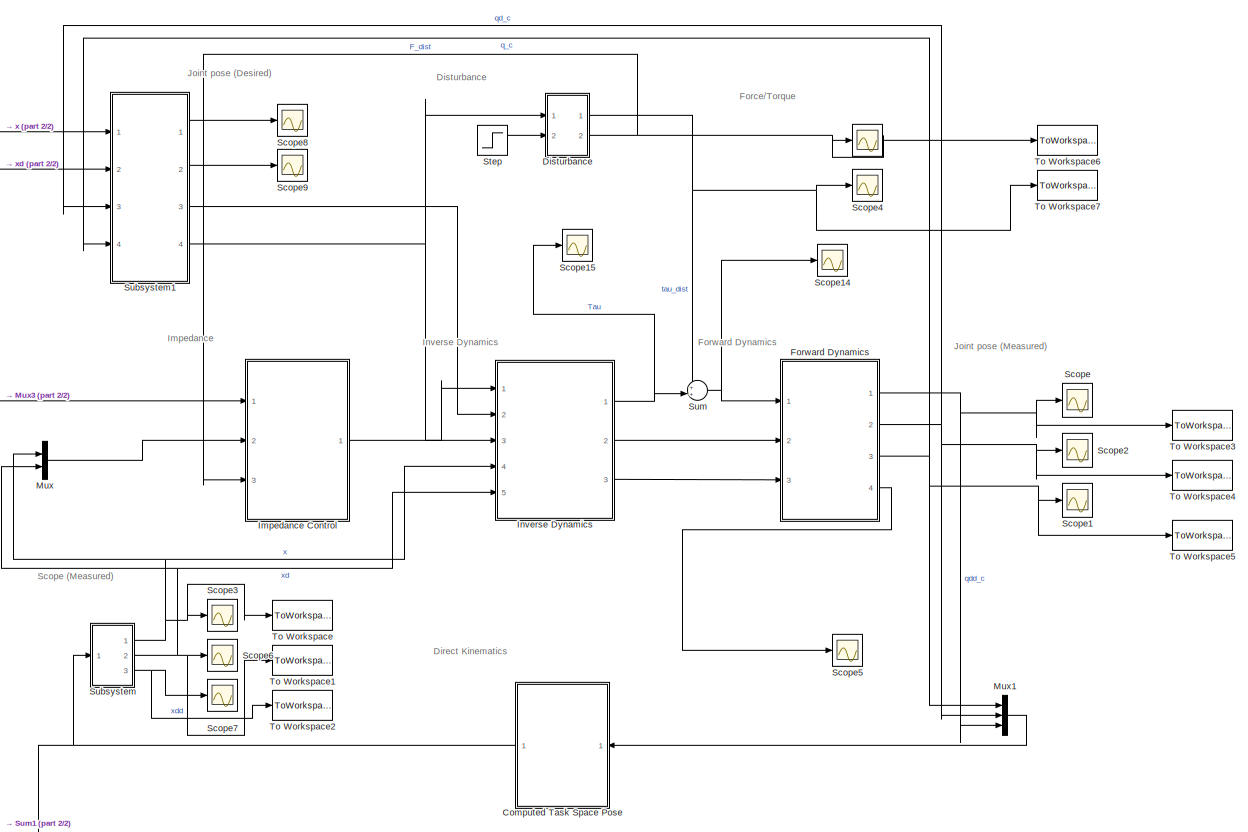
[diagram: root canvas - part 1/2, most of the canvas]
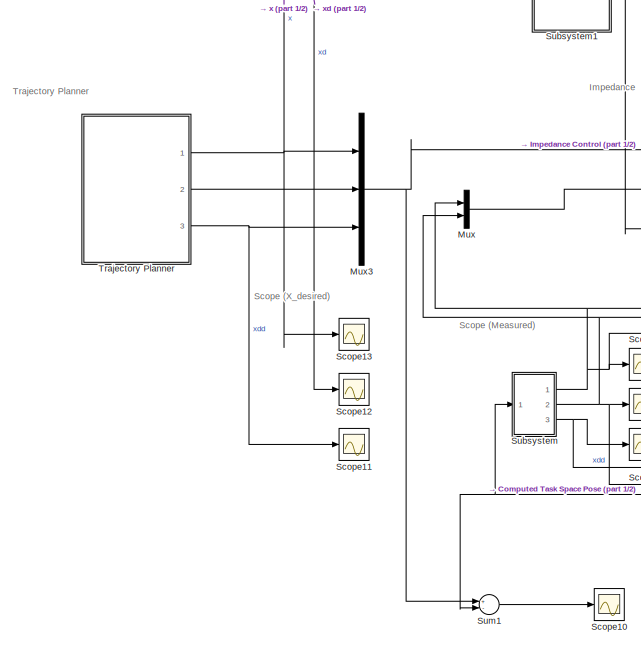
[diagram: root canvas - part 2/2, middle left region]
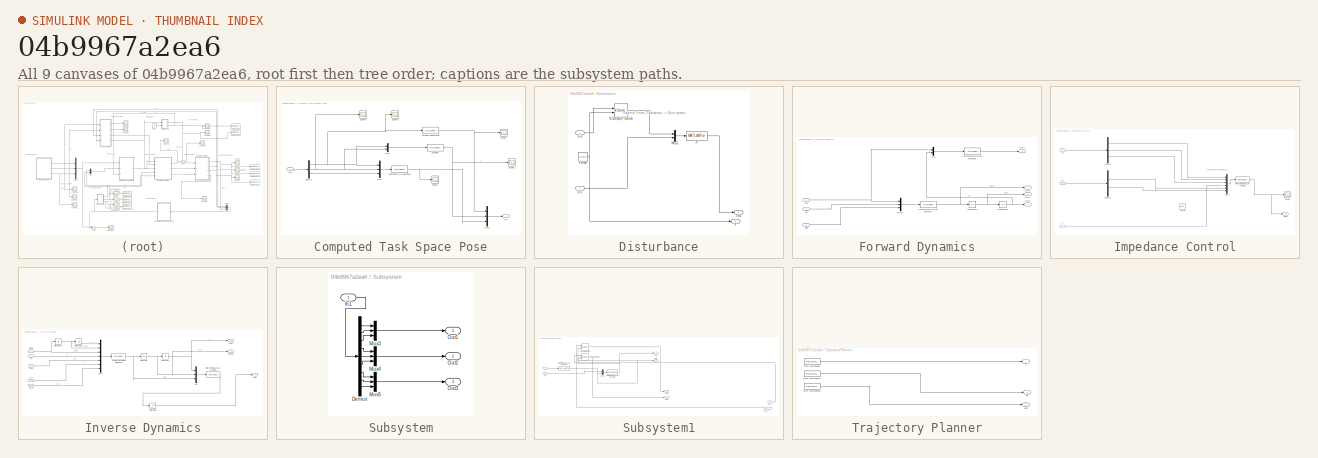
[diagram: thumbnail index - all 9 canvases of the model, root first then tree order]
MODEL slx_04b9967a2ea6
KIND model
CONFIG AbsTol = auto
CONFIG EnableMultiTasking = off
CONFIG FixedStep = 0.01
CONFIG MaxStep = auto
CONFIG MinStep = auto
CONFIG RelTol = 1e-3
CONFIG SampleTimeConstraint = Unconstrained
CONFIG Solver = ode1
CONFIG SolverName = ode1
CONFIG StartTime = 0.0
CONFIG StopTime = 60
BLOCK [Scope]  
  Floating = off
  NumInputPorts = 1
  Ports = [1]
  ScopeSpecificationString = Simulink.scopes.TimeScopeBlockCfg('CurrentConfiguration', extmgr.ConfigurationSet(extmgr.Configuration('Core','General UI',true),extmgr.Configuration('Core','Source UI',true),extmgr.Configuration('Sources','WiredSimulink',true,'DataLoggingVariableName','ScopeData1'),extmgr.Configuration('Visuals','Time Domain',true,'SerializedDisplays',{struct('MinYLimReal','-1.00000','MaxYLimReal','1.00000','YLab...<+1486ch>
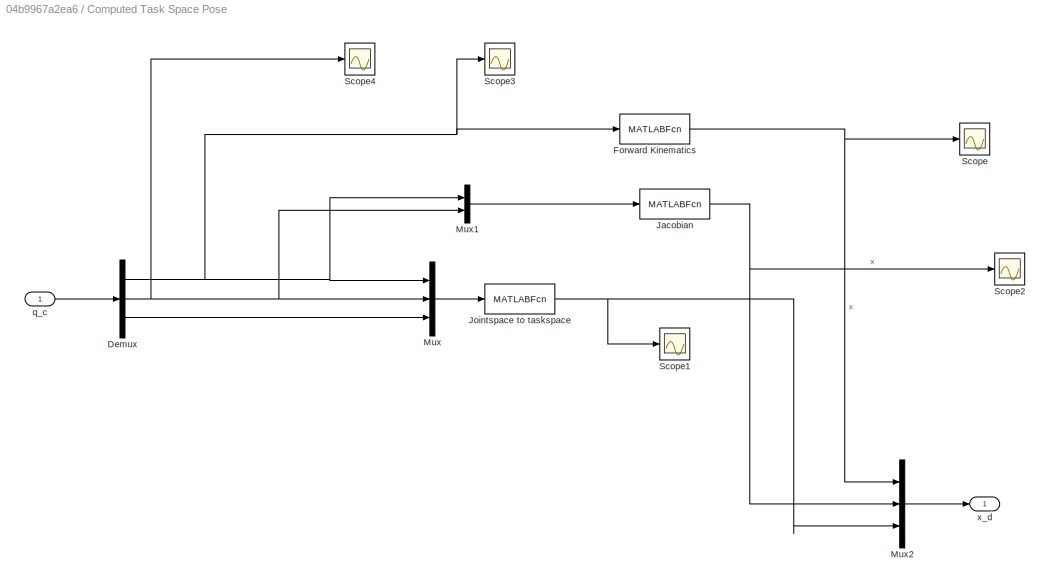
BLOCK [SubSystem] Computed Task Space Pose
  Ports = [1, 1]
  RequestExecContextInheritance = off
BLOCK [Demux] Computed Task Space Pose/Demux
  DisplayOption = bar
  Outputs = 3
  Ports = [1, 3]
BLOCK [MATLABFcn] Computed Task Space Pose/Forward Kinematics
  MATLABFcn = calcForward
  Output1D = off
  Ports = [1, 1]
BLOCK [MATLABFcn] Computed Task Space Pose/Jacobian
  MATLABFcn = calcXd
  Output1D = off
  Ports = [1, 1]
BLOCK [MATLABFcn] Computed Task Space Pose/Jointspace to taskspace
  MATLABFcn = calcXdd
  Output1D = off
  Ports = [1, 1]
BLOCK [Mux] Computed Task Space Pose/Mux
  DisplayOption = bar
  Inputs = 3
  Ports = [3, 1]
BLOCK [Mux] Computed Task Space Pose/Mux1
  DisplayOption = bar
  Inputs = 2
  Ports = [2, 1]
BLOCK [Mux] Computed Task Space Pose/Mux2
  DisplayOption = bar
  Inputs = 3
  Ports = [3, 1]
BLOCK [Scope] Computed Task Space Pose/Scope
  Floating = off
  NumInputPorts = 1
  Ports = [1]
  ScopeSpecificationString = Simulink.scopes.TimeScopeBlockCfg('CurrentConfiguration', extmgr.ConfigurationSet(extmgr.Configuration('Core','General UI',true),extmgr.Configuration('Core','Source UI',true),extmgr.Configuration('Sources','WiredSimulink',true,'DataLoggingVariableName','ScopeData7'),extmgr.Configuration('Visuals','Time Domain',true,'SerializedDisplays',{struct('MinYLimReal','-0.175','MaxYLimReal','1.575','YLabelRe...<+1362ch>
BLOCK [Scope] Computed Task Space Pose/Scope1
  Floating = off
  NumInputPorts = 1
  Ports = [1]
  ScopeSpecificationString = Simulink.scopes.TimeScopeBlockCfg('CurrentConfiguration', extmgr.ConfigurationSet(extmgr.Configuration('Core','General UI',true),extmgr.Configuration('Core','Source UI',true),extmgr.Configuration('Sources','WiredSimulink',true,'DataLoggingVariableName','ScopeData9'),extmgr.Configuration('Visuals','Time Domain',true,'SerializedDisplays',{struct('MinYLimReal','-2.40906','MaxYLimReal','1.54339','YLab...<+1538ch>
BLOCK [Scope] Computed Task Space Pose/Scope2
  Floating = off
  NumInputPorts = 1
  Ports = [1]
  ScopeSpecificationString = Simulink.scopes.TimeScopeBlockCfg('CurrentConfiguration', extmgr.ConfigurationSet(extmgr.Configuration('Core','General UI',true),extmgr.Configuration('Core','Source UI',true),extmgr.Configuration('Sources','WiredSimulink',true,'DataLoggingVariableName','ScopeData8'),extmgr.Configuration('Visuals','Time Domain',true,'SerializedDisplays',{struct('MinYLimReal','-3.19904','MaxYLimReal','1.58068','YLab...<+1374ch>
BLOCK [Scope] Computed Task Space Pose/Scope3
  Floating = off
  NumInputPorts = 1
  Ports = [1]
  ScopeSpecificationString = Simulink.scopes.TimeScopeBlockCfg('CurrentConfiguration', extmgr.ConfigurationSet(extmgr.Configuration('Core','General UI',true),extmgr.Configuration('Core','Source UI',true),extmgr.Configuration('Sources','WiredSimulink',true,'DataLoggingVariableName','ScopeData9'),extmgr.Configuration('Visuals','Time Domain',true,'SerializedDisplays',{struct('MinYLimReal','-0.61521','MaxYLimReal','1.57876','YLab...<+1455ch>
BLOCK [Scope] Computed Task Space Pose/Scope4
  Floating = off
  NumInputPorts = 1
  Ports = [1]
  ScopeSpecificationString = Simulink.scopes.TimeScopeBlockCfg('CurrentConfiguration', extmgr.ConfigurationSet(extmgr.Configuration('Core','General UI',true),extmgr.Configuration('Core','Source UI',true),extmgr.Configuration('Sources','WiredSimulink',true,'DataLoggingVariableName','ScopeData10'),extmgr.Configuration('Visuals','Time Domain',true,'SerializedDisplays',{struct('MinYLimReal','-2.87929','MaxYLimReal','2.2029','YLab...<+1379ch>
BLOCK [Inport] Computed Task Space Pose/q_c
  IconDisplay = Port number
BLOCK [Outport] Computed Task Space Pose/x_d
  IconDisplay = Port number
BLOCK [SubSystem] Disturbance
  Ports = [2, 2]
  RequestExecContextInheritance = off
BLOCK [Outport] Disturbance/F
  IconDisplay = Port number
  Port = 2
BLOCK [Inport] Disturbance/Fin
  IconDisplay = Port number
  Port = 2
BLOCK [Constant] Disturbance/Force
  Value = [0;0;0]
BLOCK [Inport] Disturbance/In1
  IconDisplay = Port number
BLOCK [MATLABFcn] Disturbance/JT
  MATLABFcn = calcforceTorque
  Output1D = off
  Ports = [1, 1]
BLOCK [Mux] Disturbance/Mux2
  DisplayOption = bar
  Inputs = 2
  Ports = [2, 1]
BLOCK [Reference] Disturbance/N-Sample Switch  REF=dspswit3/N-Sample
Switch
  Ports = [2, 1]
  SourceBlock = dspswit3/N-Sample\nSwitch
  SourceProductBaseCode = DS
  SourceProductName = DSP System Toolbox
  SourceType = N-Sample Switch
BLOCK [Outport] Disturbance/Tau
  IconDisplay = Port number
BLOCK [SubSystem] Forward Dynamics
  Ports = [3, 4]
  RequestExecContextInheritance = off
  ShowPortLabels = SignalName
BLOCK [Integrator] Forward Dynamics/Integrator2
  Ports = [1, 1]
BLOCK [Integrator] Forward Dynamics/Integrator3
  Ports = [1, 1]
BLOCK [MATLABFcn] Forward Dynamics/Interpreted MATLAB Function1
  MATLABFcn = forwardDyn
  Output1D = off
  Ports = [1, 1]
BLOCK [MATLABFcn] Forward Dynamics/Interpreted MATLAB Function2
  MATLABFcn = calcTorqueForce
  Output1D = off
  Ports = [1, 1]
BLOCK [Mux] Forward Dynamics/Mux
  DisplayOption = bar
  Inputs = 2
  Ports = [2, 1]
BLOCK [Mux] Forward Dynamics/Mux5
  DisplayOption = bar
  Inputs = 3
  Ports = [3, 1]
BLOCK [Outport] Forward Dynamics/Out1
  IconDisplay = Port number
  Port = 2
BLOCK [Outport] Forward Dynamics/Out2
  IconDisplay = Port number
  Port = 3
BLOCK [Outport] Forward Dynamics/Out3
  IconDisplay = Port number
BLOCK [Outport] Forward Dynamics/Out4
  IconDisplay = Port number
  Port = 4
BLOCK [Inport] Forward Dynamics/qdin
  IconDisplay = Port number
  Port = 3
BLOCK [Inport] Forward Dynamics/qin
  IconDisplay = Port number
  Port = 2
BLOCK [Inport] Forward Dynamics/tau
  IconDisplay = Port number
BLOCK [SubSystem] Impedance Control
  Ports = [3, 1]
  RequestExecContextInheritance = off
BLOCK [Demux] Impedance Control/Demux2
  DisplayOption = bar
  Outputs = 3
  Ports = [1, 3]
BLOCK [Demux] Impedance Control/Demux3
  DisplayOption = bar
  Outputs = 2
  Ports = [1, 2]
BLOCK [Inport] Impedance Control/F
  IconDisplay = Port number
  Port = 3
BLOCK [Constant] Impedance Control/Force
  Commented = on
  Value = [0;0;0]
BLOCK [MATLABFcn] Impedance Control/Interpreted MATLAB Function
  MATLABFcn = impedanceAccelControl
  Output1D = off
  Ports = [1, 1]
BLOCK [Mux] Impedance Control/Mux4
  DisplayOption = bar
  Inputs = 6
  Ports = [6, 1]
BLOCK [Scope] Impedance Control/Scope
  Floating = off
  NumInputPorts = 1
  Ports = [1]
  ScopeSpecificationString = Simulink.scopes.TimeScopeBlockCfg('CurrentConfiguration', extmgr.ConfigurationSet(extmgr.Configuration('Core','General UI',true),extmgr.Configuration('Core','Source UI',true),extmgr.Configuration('Sources','WiredSimulink',true,'DataLoggingVariableName','ScopeData4'),extmgr.Configuration('Visuals','Time Domain',true,'SerializedDisplays',{struct('MinYLimReal','-12.98384','MaxYLimReal','8.27742','YLa...<+1556ch>
BLOCK [Outport] Impedance Control/alpha
  IconDisplay = Port number
BLOCK [Inport] Impedance Control/x_c
  IconDisplay = Port number
  Port = 2
BLOCK [Inport] Impedance Control/x_d
  IconDisplay = Port number
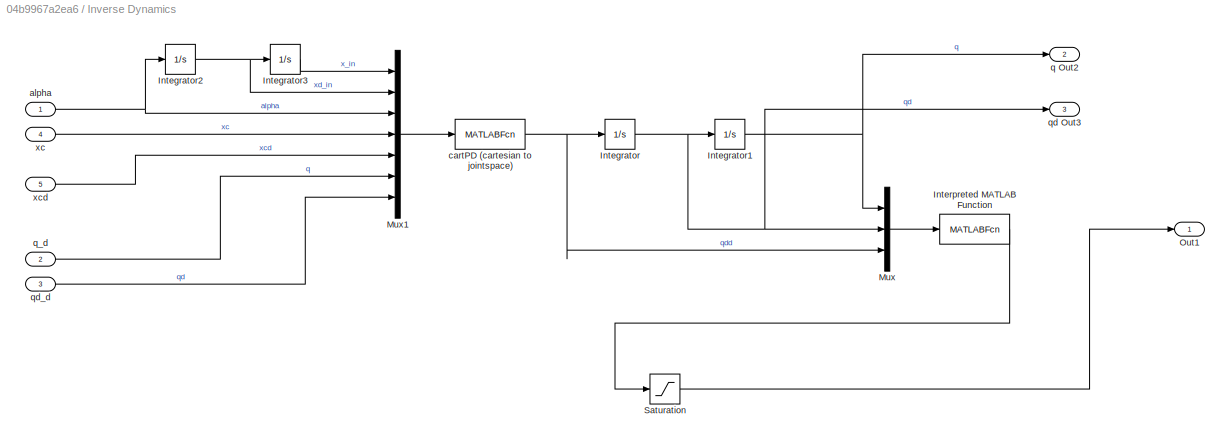
BLOCK [SubSystem] Inverse Dynamics
  Ports = [5, 3]
  RequestExecContextInheritance = off
BLOCK [Integrator] Inverse Dynamics/Integrator
  Ports = [1, 1]
BLOCK [Integrator] Inverse Dynamics/Integrator1
  Ports = [1, 1]
BLOCK [Integrator] Inverse Dynamics/Integrator2
  Ports = [1, 1]
BLOCK [Integrator] Inverse Dynamics/Integrator3
  Ports = [1, 1]
BLOCK [MATLABFcn] Inverse Dynamics/Interpreted MATLAB Function
  MATLABFcn = RNE_sim2
  Output1D = off
  Ports = [1, 1]
BLOCK [Mux] Inverse Dynamics/Mux
  DisplayOption = bar
  Inputs = 3
  Ports = [3, 1]
BLOCK [Mux] Inverse Dynamics/Mux1
  DisplayOption = bar
  Inputs = 7
  Ports = [7, 1]
BLOCK [Outport] Inverse Dynamics/Out1
  IconDisplay = Port number
BLOCK [Saturate] Inverse Dynamics/Saturation
  InputPortMap = u0
  LowerLimit = -200
  Ports = [1, 1]
  UpperLimit = 200
BLOCK [Inport] Inverse Dynamics/alpha
  IconDisplay = Port number
BLOCK [MATLABFcn] Inverse Dynamics/cartPD (cartesian to jointspace)
  MATLABFcn = cartPD
  Output1D = off
  Ports = [1, 1]
BLOCK [Outport] Inverse Dynamics/q Out2
  IconDisplay = Port number
  Port = 2
BLOCK [Inport] Inverse Dynamics/q_d
  IconDisplay = Port number
  Port = 2
BLOCK [Outport] Inverse Dynamics/qd Out3
  IconDisplay = Port number
  Port = 3
BLOCK [Inport] Inverse Dynamics/qd_d
  IconDisplay = Port number
  Port = 3
BLOCK [Inport] Inverse Dynamics/xc
  IconDisplay = Port number
  Port = 4
BLOCK [Inport] Inverse Dynamics/xcd
  IconDisplay = Port number
  Port = 5
BLOCK [Mux] Mux
  DisplayOption = bar
  Inputs = 2
  Ports = [2, 1]
BLOCK [Mux] Mux1
  DisplayOption = bar
  Inputs = 3
  Ports = [3, 1]
BLOCK [Mux] Mux3
  DisplayOption = bar
  Inputs = 3
  Ports = [3, 1]
BLOCK [Scope] Scope
  Floating = off
  NumInputPorts = 1
  Ports = [1]
  ScopeSpecificationString = Simulink.scopes.TimeScopeBlockCfg('CurrentConfiguration', extmgr.ConfigurationSet(extmgr.Configuration('Core','General UI',true),extmgr.Configuration('Core','Source UI',true),extmgr.Configuration('Sources','WiredSimulink',true,'DataLoggingVariableName','ScopeData2'),extmgr.Configuration('Visuals','Time Domain',true,'SerializedDisplays',{struct('MinYLimReal','-705.06875','MaxYLimReal','408.47784','...<+1556ch>
BLOCK [Scope] Scope1
  Floating = off
  NumInputPorts = 1
  Ports = [1]
  ScopeSpecificationString = Simulink.scopes.TimeScopeBlockCfg('CurrentConfiguration', extmgr.ConfigurationSet(extmgr.Configuration('Core','General UI',true),extmgr.Configuration('Core','Source UI',true),extmgr.Configuration('Sources','WiredSimulink',true,'DataLoggingVariableName','ScopeData3'),extmgr.Configuration('Visuals','Time Domain',true,'SerializedDisplays',{struct('MinYLimReal','-7.64284','MaxYLimReal','2.5688','YLabe...<+1414ch>
BLOCK [Scope] Scope10
  Floating = off
  NumInputPorts = 1
  Ports = [1]
  ScopeSpecificationString = Simulink.scopes.TimeScopeBlockCfg('CurrentConfiguration', extmgr.ConfigurationSet(extmgr.Configuration('Core','General UI',true),extmgr.Configuration('Core','Source UI',true),extmgr.Configuration('Sources','WiredSimulink',true,'DataLoggingVariableName','ScopeData1'),extmgr.Configuration('Visuals','Time Domain',true,'SerializedDisplays',{struct('MinYLimReal','-2.81087','MaxYLimReal','5.29366','YLab...<+1714ch>
BLOCK [Scope] Scope11
  Floating = off
  NumInputPorts = 1
  Ports = [1]
  ScopeSpecificationString = Simulink.scopes.TimeScopeBlockCfg('CurrentConfiguration', extmgr.ConfigurationSet(extmgr.Configuration('Core','General UI',true),extmgr.Configuration('Core','Source UI',true),extmgr.Configuration('Sources','WiredSimulink',true,'DataLoggingVariableName','ScopeData4'),extmgr.Configuration('Visuals','Time Domain',true,'SerializedDisplays',{struct('MinYLimReal','-0.00481','MaxYLimReal','0.00481','YLab...<+1408ch>
BLOCK [Scope] Scope12
  Floating = off
  NumInputPorts = 1
  Ports = [1]
  ScopeSpecificationString = Simulink.scopes.TimeScopeBlockCfg('CurrentConfiguration', extmgr.ConfigurationSet(extmgr.Configuration('Core','General UI',true),extmgr.Configuration('Core','Source UI',true),extmgr.Configuration('Sources','WiredSimulink',true,'DataLoggingVariableName','ScopeData5'),extmgr.Configuration('Visuals','Time Domain',true,'SerializedDisplays',{struct('MinYLimReal','-0.00469','MaxYLimReal','0.04219','YLab...<+1405ch>
BLOCK [Scope] Scope13
  Floating = off
  NumInputPorts = 1
  Ports = [1]
  ScopeSpecificationString = Simulink.scopes.TimeScopeBlockCfg('CurrentConfiguration', extmgr.ConfigurationSet(extmgr.Configuration('Core','General UI',true),extmgr.Configuration('Core','Source UI',true),extmgr.Configuration('Sources','WiredSimulink',true,'DataLoggingVariableName','ScopeData6'),extmgr.Configuration('Visuals','Time Domain',true,'SerializedDisplays',{struct('MinYLimReal','-0.125','MaxYLimReal','1.125','YLabelRe...<+1390ch>
BLOCK [Scope] Scope14
  Floating = off
  NumInputPorts = 1
  Ports = [1]
  ScopeSpecificationString = Simulink.scopes.TimeScopeBlockCfg('CurrentConfiguration', extmgr.ConfigurationSet(extmgr.Configuration('Core','General UI',true),extmgr.Configuration('Core','Source UI',true),extmgr.Configuration('Sources','WiredSimulink',true,'DataLoggingVariableName','ScopeData2'),extmgr.Configuration('Visuals','Time Domain',true,'SerializedDisplays',{struct('MinYLimReal','-2641.02773','MaxYLimReal','2642.02568'...<+1441ch>
BLOCK [Scope] Scope15
  Floating = off
  NumInputPorts = 1
  Ports = [1]
  ScopeSpecificationString = Simulink.scopes.TimeScopeBlockCfg('CurrentConfiguration', extmgr.ConfigurationSet(extmgr.Configuration('Core','General UI',true),extmgr.Configuration('Core','Source UI',true),extmgr.Configuration('Sources','WiredSimulink',true,'DataLoggingVariableName','ScopeData3'),extmgr.Configuration('Visuals','Time Domain',true,'SerializedDisplays',{struct('MinYLimReal','-185.50695','MaxYLimReal','242.83411','...<+1440ch>
BLOCK [Scope] Scope2
  Floating = off
  NumInputPorts = 1
  Ports = [1]
  ScopeSpecificationString = Simulink.scopes.TimeScopeBlockCfg('CurrentConfiguration', extmgr.ConfigurationSet(extmgr.Configuration('Core','General UI',true),extmgr.Configuration('Core','Source UI',true),extmgr.Configuration('Sources','WiredSimulink',true,'DataLoggingVariableName','ScopeData7'),extmgr.Configuration('Visuals','Time Domain',true,'SerializedDisplays',{struct('MinYLimReal','-0.85323','MaxYLimReal','0.50817','YLab...<+1539ch>
BLOCK [Scope] Scope3
  Floating = off
  NumInputPorts = 1
  Ports = [1]
  ScopeSpecificationString = Simulink.scopes.TimeScopeBlockCfg('CurrentConfiguration', extmgr.ConfigurationSet(extmgr.Configuration('Core','General UI',true),extmgr.Configuration('Core','Source UI',true),extmgr.Configuration('Sources','WiredSimulink',true,'DataLoggingVariableName','ScopeData8'),extmgr.Configuration('Visuals','Time Domain',true,'SerializedDisplays',{struct('MinYLimReal','-0.17635','MaxYLimReal','1.57515','YLab...<+1495ch>
BLOCK [Scope] Scope4
  Floating = off
  NumInputPorts = 1
  Ports = [1]
  ScopeSpecificationString = Simulink.scopes.TimeScopeBlockCfg('CurrentConfiguration', extmgr.ConfigurationSet(extmgr.Configuration('Core','General UI',true),extmgr.Configuration('Core','Source UI',true),extmgr.Configuration('Sources','WiredSimulink',true,'DataLoggingVariableName','ScopeData9'),extmgr.Configuration('Visuals','Time Domain',true,'SerializedDisplays',{struct('MinYLimReal','-1.82306','MaxYLimReal','16.40752','YLa...<+1511ch>
BLOCK [Scope] Scope5
  Floating = off
  NumInputPorts = 1
  Ports = [1]
  ScopeSpecificationString = Simulink.scopes.TimeScopeBlockCfg('CurrentConfiguration', extmgr.ConfigurationSet(extmgr.Configuration('Core','General UI',true),extmgr.Configuration('Core','Source UI',true),extmgr.Configuration('Sources','WiredSimulink',true,'DataLoggingVariableName','ScopeData1'),extmgr.Configuration('Visuals','Time Domain',true,'SerializedDisplays',{struct('MinYLimReal','-847177.78901','MaxYLimReal','789976.15...<+1536ch>
BLOCK [Scope] Scope6
  Floating = off
  NumInputPorts = 1
  Ports = [1]
  ScopeSpecificationString = Simulink.scopes.TimeScopeBlockCfg('CurrentConfiguration', extmgr.ConfigurationSet(extmgr.Configuration('Core','General UI',true),extmgr.Configuration('Core','Source UI',true),extmgr.Configuration('Sources','WiredSimulink',true,'DataLoggingVariableName','ScopeData11'),extmgr.Configuration('Visuals','Time Domain',true,'SerializedDisplays',{struct('MinYLimReal','-1.14205','MaxYLimReal','1.66196','YLa...<+1408ch>
BLOCK [Scope] Scope7
  Floating = off
  NumInputPorts = 1
  Ports = [1]
  ScopeSpecificationString = Simulink.scopes.TimeScopeBlockCfg('CurrentConfiguration', extmgr.ConfigurationSet(extmgr.Configuration('Core','General UI',true),extmgr.Configuration('Core','Source UI',true),extmgr.Configuration('Sources','WiredSimulink',true,'DataLoggingVariableName','ScopeData12'),extmgr.Configuration('Visuals','Time Domain',true,'SerializedDisplays',{struct('MinYLimReal','-5.86043','MaxYLimReal','10.78915','YL...<+1413ch>
BLOCK [Scope] Scope8
  Floating = off
  NumInputPorts = 1
  Ports = [1]
  ScopeSpecificationString = Simulink.scopes.TimeScopeBlockCfg('CurrentConfiguration', extmgr.ConfigurationSet(extmgr.Configuration('Core','General UI',true),extmgr.Configuration('Core','Source UI',true),extmgr.Configuration('Sources','WiredSimulink',true,'DataLoggingVariableName','ScopeData13'),extmgr.Configuration('Visuals','Time Domain',true,'SerializedDisplays',{struct('MinYLimReal','-0.03971','MaxYLimReal','0.00441','YLa...<+1417ch>
BLOCK [Scope] Scope9
  Floating = off
  NumInputPorts = 1
  Ports = [1]
  ScopeSpecificationString = Simulink.scopes.TimeScopeBlockCfg('CurrentConfiguration', extmgr.ConfigurationSet(extmgr.Configuration('Core','General UI',true),extmgr.Configuration('Core','Source UI',true),extmgr.Configuration('Sources','WiredSimulink',true,'DataLoggingVariableName','ScopeData14'),extmgr.Configuration('Visuals','Time Domain',true,'SerializedDisplays',{struct('MinYLimReal','-3.16787','MaxYLimReal','-1.08321','YL...<+1421ch>
BLOCK [Step] Step
  After = [1;1;0]
  SampleTime = 0.01
  Time = 15
  VectorParams1D = off
BLOCK [SubSystem] Subsystem
  Ports = [1, 3]
  RequestExecContextInheritance = off
BLOCK [Demux] Subsystem/Demux
  DisplayOption = bar
  Outputs = 9
  Ports = [1, 9]
BLOCK [Inport] Subsystem/In1
  IconDisplay = Port number
BLOCK [Mux] Subsystem/Mux3
  DisplayOption = bar
  Inputs = 3
  Ports = [3, 1]
BLOCK [Mux] Subsystem/Mux4
  DisplayOption = bar
  Inputs = 3
  Ports = [3, 1]
BLOCK [Mux] Subsystem/Mux5
  DisplayOption = bar
  Inputs = 3
  Ports = [3, 1]
BLOCK [Outport] Subsystem/Out1
  IconDisplay = Port number
BLOCK [Outport] Subsystem/Out2
  IconDisplay = Port number
  Port = 2
BLOCK [Outport] Subsystem/Out3
  IconDisplay = Port number
  Port = 3
BLOCK [SubSystem] Subsystem1
  Ports = [4, 4]
  RequestExecContextInheritance = off
BLOCK [MATLABFcn] Subsystem1/Interpreted MATLAB Function
  MATLABFcn = calcInverseKin
  Output1D = off
  Ports = [1, 1]
BLOCK [MATLABFcn] Subsystem1/Interpreted MATLAB Function1
  MATLABFcn = calcQd
  Output1D = off
  Ports = [1, 1]
BLOCK [Mux] Subsystem1/Mux2
  DisplayOption = bar
  Inputs = 2
  Ports = [2, 1]
BLOCK [Reference] Subsystem1/N-Sample Switch  REF=dspswit3/N-Sample
Switch
  Ports = [2, 1]
  SourceBlock = dspswit3/N-Sample\nSwitch
  SourceProductBaseCode = DS
  SourceProductName = DSP System Toolbox
  SourceType = N-Sample Switch
BLOCK [Reference] Subsystem1/N-Sample Switch1  REF=dspswit3/N-Sample
Switch
  Ports = [2, 1]
  SourceBlock = dspswit3/N-Sample\nSwitch
  SourceProductBaseCode = DS
  SourceProductName = DSP System Toolbox
  SourceType = N-Sample Switch
BLOCK [Outport] Subsystem1/Out1
  IconDisplay = Port number
BLOCK [Outport] Subsystem1/Out2
  IconDisplay = Port number
  Port = 2
BLOCK [Outport] Subsystem1/Out3
  IconDisplay = Port number
  Port = 3
BLOCK [Outport] Subsystem1/Out4
  IconDisplay = Port number
  Port = 4
BLOCK [Inport] Subsystem1/q_c
  IconDisplay = Port number
  Port = 4
BLOCK [Inport] Subsystem1/qd_c
  IconDisplay = Port number
  Port = 3
BLOCK [Inport] Subsystem1/x
  IconDisplay = Port number
BLOCK [Inport] Subsystem1/xd
  IconDisplay = Port number
  Port = 2
BLOCK [Sum] Sum
  IconShape = round
  InputSameDT = off
  Inputs = ++|
  OutDataTypeStr = Inherit: Inherit via internal rule
  Ports = [2, 1]
  SaturateOnIntegerOverflow = off
BLOCK [Sum] Sum1
  InputSameDT = off
  Inputs = +-
  OutDataTypeStr = Inherit: Inherit via internal rule
  Ports = [2, 1]
  SaturateOnIntegerOverflow = off
BLOCK [ToWorkspace] To Workspace
  FixptAsFi = on
  MaxDataPoints = inf
  Ports = [1]
  SampleTime = -1
  SaveFormat = Structure With Time
  VariableName = x_out
BLOCK [ToWorkspace] To Workspace1
  FixptAsFi = on
  MaxDataPoints = inf
  Ports = [1]
  SampleTime = -1
  SaveFormat = Structure With Time
  VariableName = xd_out
BLOCK [ToWorkspace] To Workspace2
  FixptAsFi = on
  MaxDataPoints = inf
  Ports = [1]
  SampleTime = -1
  SaveFormat = Structure With Time
  VariableName = xdd_out
BLOCK [ToWorkspace] To Workspace3
  FixptAsFi = on
  MaxDataPoints = inf
  Ports = [1]
  SampleTime = -1
  SaveFormat = Structure With Time
  VariableName = q_out
BLOCK [ToWorkspace] To Workspace4
  FixptAsFi = on
  MaxDataPoints = inf
  Ports = [1]
  SampleTime = -1
  SaveFormat = Structure With Time
  VariableName = qd_out
BLOCK [ToWorkspace] To Workspace5
  FixptAsFi = on
  MaxDataPoints = inf
  Ports = [1]
  SampleTime = -1
  SaveFormat = Structure With Time
  VariableName = qdd_out
BLOCK [ToWorkspace] To Workspace6
  FixptAsFi = on
  MaxDataPoints = inf
  Ports = [1]
  SampleTime = -1
  SaveFormat = Structure With Time
  VariableName = F_ext
BLOCK [ToWorkspace] To Workspace7
  FixptAsFi = on
  MaxDataPoints = inf
  Ports = [1]
  SampleTime = -1
  SaveFormat = Structure With Time
  VariableName = tau
BLOCK [SubSystem] Trajectory Planner
  Ports = [0, 3]
  RequestExecContextInheritance = off
BLOCK [FromWorkspace] Trajectory Planner/From Workspace
  SampleTime = 0
  VariableName = X1
  ZeroCross = on
BLOCK [FromWorkspace] Trajectory Planner/From Workspace1
  SampleTime = 0
  VariableName = X1dot
  ZeroCross = on
BLOCK [FromWorkspace] Trajectory Planner/From Workspace2
  SampleTime = 0
  VariableName = X1ddot
  ZeroCross = on
BLOCK [Outport] Trajectory Planner/X
  IconDisplay = Port number
BLOCK [Outport] Trajectory Planner/Xd
  IconDisplay = Port number
  Port = 2
BLOCK [Outport] Trajectory Planner/Xdd
  IconDisplay = Port number
  Port = 3
ANNOTATION (root): Direct Kinematics
ANNOTATION (root): Disturbance
ANNOTATION (root): Force/Torque
ANNOTATION (root): Forward Dynamics
ANNOTATION (root): Impedance
ANNOTATION (root): Inverse Dynamics
ANNOTATION (root): Joint pose (Desired)
ANNOTATION (root): Joint pose (Measured)
ANNOTATION (root): Scope (Measured)
ANNOTATION (root): Scope (X_desired)
ANNOTATION (root): Trajectory Planner
ANNOTATION Disturbance: External Force (Task space) -> (Joint space)
ANNOTATION Impedance Control: Task Space Acceleration a_x
NET Computed Task Space Pose/Demux:1 -> Computed Task Space Pose/Forward Kinematics:1, Computed Task Space Pose/Mux1:1, Computed Task Space Pose/Mux:1, Computed Task Space Pose/Scope3:1
NET Computed Task Space Pose/Demux:2 -> Computed Task Space Pose/Mux1:2, Computed Task Space Pose/Mux:2, Computed Task Space Pose/Scope4:1
LINE Computed Task Space Pose/Demux:3 -> Computed Task Space Pose/Mux:3
NET Computed Task Space Pose/Forward Kinematics:1 -> Computed Task Space Pose/Mux2:1, Computed Task Space Pose/Scope:1
NET Computed Task Space Pose/Jacobian:1 -> Computed Task Space Pose/Mux2:2, Computed Task Space Pose/Scope2:1
NET Computed Task Space Pose/Jointspace to taskspace:1 -> Computed Task Space Pose/Mux2:3, Computed Task Space Pose/Scope1:1
LINE Computed Task Space Pose/Mux1:1 -> Computed Task Space Pose/Jacobian:1
LINE Computed Task Space Pose/Mux2:1 -> Computed Task Space Pose/x_d:1
LINE Computed Task Space Pose/Mux:1 -> Computed Task Space Pose/Jointspace to taskspace:1
LINE Computed Task Space Pose/q_c:1 -> Computed Task Space Pose/Demux:1
NET Computed Task Space Pose:1 -> Subsystem:1, Sum1:2
LINE Disturbance/Fin:1 -> Disturbance/N-Sample Switch:1
NET Disturbance/Force:1 -> Disturbance/F:1, Disturbance/N-Sample Switch:2
LINE Disturbance/In1:1 -> Disturbance/Mux2:2
LINE Disturbance/JT:1 -> Disturbance/Tau:1
LINE Disturbance/Mux2:1 -> Disturbance/JT:1
LINE Disturbance/N-Sample Switch:1 -> Disturbance/Mux2:1
NET Disturbance:1 -> Scope4:1, Sum:1, To Workspace7:1
NET Disturbance:2 ->  :1, Impedance Control:3, To Workspace6:1
NET Forward Dynamics/Integrator2:1 -> Forward Dynamics/Integrator3:1, Forward Dynamics/Out1:1
NET Forward Dynamics/Integrator3:1 -> Forward Dynamics/Mux:2, Forward Dynamics/Out2:1
NET Forward Dynamics/Interpreted MATLAB Function1:1 -> Forward Dynamics/Integrator2:1, Forward Dynamics/Out3:1
LINE Forward Dynamics/Interpreted MATLAB Function2:1 -> Forward Dynamics/Out4:1
LINE Forward Dynamics/Mux5:1 -> Forward Dynamics/Interpreted MATLAB Function1:1
LINE Forward Dynamics/Mux:1 -> Forward Dynamics/Interpreted MATLAB Function2:1
LINE Forward Dynamics/qdin:1 -> Forward Dynamics/Mux5:3
LINE Forward Dynamics/qin:1 -> Forward Dynamics/Mux5:2
NET Forward Dynamics/tau:1 -> Forward Dynamics/Mux5:1, Forward Dynamics/Mux:1
NET Forward Dynamics:1 -> Mux1:3, Scope:1, To Workspace3:1
NET Forward Dynamics:2 -> Mux1:2, Scope2:1, Subsystem1:3, To Workspace4:1
NET Forward Dynamics:3 -> Mux1:1, Scope1:1, Subsystem1:4, To Workspace5:1
LINE Forward Dynamics:4 -> Scope5:1
LINE Impedance Control/Demux2:1 -> Impedance Control/Mux4:1
LINE Impedance Control/Demux2:2 -> Impedance Control/Mux4:2
LINE Impedance Control/Demux2:3 -> Impedance Control/Mux4:3
LINE Impedance Control/Demux3:1 -> Impedance Control/Mux4:5
LINE Impedance Control/Demux3:2 -> Impedance Control/Mux4:6
LINE Impedance Control/F:1 -> Impedance Control/Mux4:4
NET Impedance Control/Interpreted MATLAB Function:1 -> Impedance Control/Scope:1, Impedance Control/alpha:1
LINE Impedance Control/Mux4:1 -> Impedance Control/Interpreted MATLAB Function:1
LINE Impedance Control/x_c:1 -> Impedance Control/Demux3:1
LINE Impedance Control/x_d:1 -> Impedance Control/Demux2:1
LINE Impedance Control:1 -> Inverse Dynamics:1
NET Inverse Dynamics/Integrator1:1 -> Inverse Dynamics/Mux:1, Inverse Dynamics/q Out2:1
NET Inverse Dynamics/Integrator2:1 -> Inverse Dynamics/Integrator3:1, Inverse Dynamics/Mux1:2
LINE Inverse Dynamics/Integrator3:1 -> Inverse Dynamics/Mux1:1
NET Inverse Dynamics/Integrator:1 -> Inverse Dynamics/Integrator1:1, Inverse Dynamics/Mux:2, Inverse Dynamics/qd Out3:1
LINE Inverse Dynamics/Interpreted MATLAB Function:1 -> Inverse Dynamics/Saturation:1
LINE Inverse Dynamics/Mux1:1 -> Inverse Dynamics/cartPD (cartesian to jointspace):1
LINE Inverse Dynamics/Mux:1 -> Inverse Dynamics/Interpreted MATLAB Function:1
LINE Inverse Dynamics/Saturation:1 -> Inverse Dynamics/Out1:1
NET Inverse Dynamics/alpha:1 -> Inverse Dynamics/Integrator2:1, Inverse Dynamics/Mux1:3
NET Inverse Dynamics/cartPD (cartesian to jointspace):1 -> Inverse Dynamics/Integrator:1, Inverse Dynamics/Mux:3
LINE Inverse Dynamics/q_d:1 -> Inverse Dynamics/Mux1:6
LINE Inverse Dynamics/qd_d:1 -> Inverse Dynamics/Mux1:7
LINE Inverse Dynamics/xc:1 -> Inverse Dynamics/Mux1:4
LINE Inverse Dynamics/xcd:1 -> Inverse Dynamics/Mux1:5
NET Inverse Dynamics:1 -> Scope15:1, Sum:2
LINE Inverse Dynamics:2 -> Forward Dynamics:2
LINE Inverse Dynamics:3 -> Forward Dynamics:3
LINE Mux1:1 -> Computed Task Space Pose:1
NET Mux3:1 -> Impedance Control:1, Sum1:1
LINE Mux:1 -> Impedance Control:2
LINE Step:1 -> Disturbance:2
LINE Subsystem/Demux:1 -> Subsystem/Mux3:1
LINE Subsystem/Demux:2 -> Subsystem/Mux3:2
LINE Subsystem/Demux:3 -> Subsystem/Mux3:3
LINE Subsystem/Demux:4 -> Subsystem/Mux4:1
LINE Subsystem/Demux:5 -> Subsystem/Mux4:2
LINE Subsystem/Demux:6 -> Subsystem/Mux4:3
LINE Subsystem/Demux:7 -> Subsystem/Mux5:1
LINE Subsystem/Demux:8 -> Subsystem/Mux5:2
LINE Subsystem/Demux:9 -> Subsystem/Mux5:3
LINE Subsystem/In1:1 -> Subsystem/Demux:1
LINE Subsystem/Mux3:1 -> Subsystem/Out1:1
LINE Subsystem/Mux4:1 -> Subsystem/Out2:1
LINE Subsystem/Mux5:1 -> Subsystem/Out3:1
NET Subsystem1/Interpreted MATLAB Function1:1 -> Subsystem1/N-Sample Switch1:2, Subsystem1/Out1:1
NET Subsystem1/Interpreted MATLAB Function:1 -> Subsystem1/Mux2:2, Subsystem1/N-Sample Switch:2, Subsystem1/Out2:1
LINE Subsystem1/Mux2:1 -> Subsystem1/Interpreted MATLAB Function1:1
LINE Subsystem1/N-Sample Switch1:1 -> Subsystem1/Out4:1
LINE Subsystem1/N-Sample Switch:1 -> Subsystem1/Out3:1
LINE Subsystem1/q_c:1 -> Subsystem1/N-Sample Switch:1
LINE Subsystem1/qd_c:1 -> Subsystem1/N-Sample Switch1:1
LINE Subsystem1/x:1 -> Subsystem1/Interpreted MATLAB Function:1
LINE Subsystem1/xd:1 -> Subsystem1/Mux2:1
LINE Subsystem1:1 -> Scope8:1
LINE Subsystem1:2 -> Scope9:1
LINE Subsystem1:3 -> Inverse Dynamics:2
NET Subsystem1:4 -> Disturbance:1, Inverse Dynamics:3
NET Subsystem:1 -> Inverse Dynamics:4, Mux:1, Scope3:1, To Workspace:1
NET Subsystem:2 -> Inverse Dynamics:5, Mux:2, Scope6:1, To Workspace1:1
NET Subsystem:3 -> Scope7:1, To Workspace2:1
LINE Sum1:1 -> Scope10:1
NET Sum:1 -> Forward Dynamics:1, Scope14:1
LINE Trajectory Planner/From Workspace1:1 -> Trajectory Planner/Xd:1
LINE Trajectory Planner/From Workspace2:1 -> Trajectory Planner/Xdd:1
LINE Trajectory Planner/From Workspace:1 -> Trajectory Planner/X:1
NET Trajectory Planner:1 -> Mux3:1, Scope13:1, Subsystem1:1
NET Trajectory Planner:2 -> Mux3:2, Scope12:1, Subsystem1:2
NET Trajectory Planner:3 -> Mux3:3, Scope11:1
note: NET lines group one-source signal fan-out (src -> all destinations, sorted); 1:1 wires keep LINE
